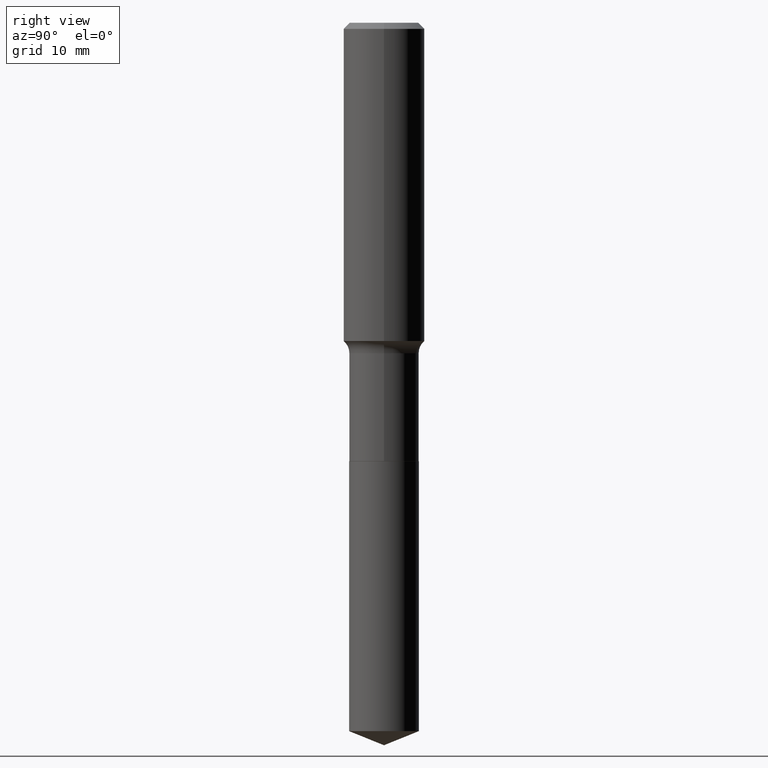
[diagram: clean part render]
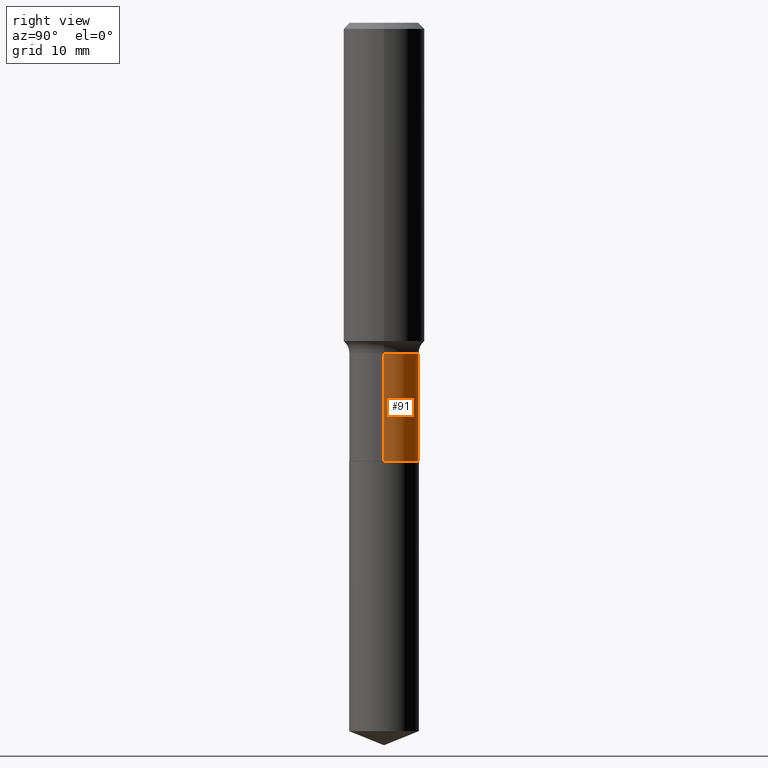
[diagram: same view with one face highlighted and labeled with its STEP entity id]
A machine part, right view. The second image highlights one B-rep face of the part: STEP entity #91.
In plain terms, the highlighted cylindrical surface (edge-blend (fillet) strip) has radius 4.3002 mm, axis along (-0, 0, 1).
Its self-contained STEP definition (entity closure, byte-faithful):
#1 = AXIS2_PLACEMENT_3D ( 'NONE', #51, #171, #215 ) ;
#5 = CARTESIAN_POINT ( 'NONE',  ( 0.1693000000000000338, -8.603010018909505642E-15, -2.125399999999999956 ) ) ;
#23 = ORIENTED_EDGE ( 'NONE', *, *, #258, .T. ) ;
#31 = DIRECTION ( 'NONE',  ( -2.445468806185136877E-29, 3.491481338843145188E-15, 1.000000000000000000 ) ) ;
#32 = CARTESIAN_POINT ( 'NONE',  ( 0.1692999999999999505, -6.778012723096194024E-15, -1.602699999999999791 ) ) ;
#33 = EDGE_CURVE ( 'NONE', #431, #387, #363, .T. ) ;
#51 = CARTESIAN_POINT ( 'NONE',  ( 3.919352855672918001E-29, -5.595797141763909209E-15, -1.602699999999999791 ) ) ;
#91 = ADVANCED_FACE ( 'NONE', ( #479 ), #481, .T. ) ;
#95 = DIRECTION ( 'NONE',  ( -2.445468806185136597E-29, 3.491481338843145583E-15, 1.000000000000000000 ) ) ;
#99 = DIRECTION ( 'NONE',  ( -2.445468806185136597E-29, 3.491481338843145583E-15, 1.000000000000000000 ) ) ;
#103 = CARTESIAN_POINT ( 'NONE',  ( -0.1692999999999999783, 1.202948851641849460E-15, -8.327757107801554310E-30 ) ) ;
#111 = VECTOR ( 'NONE', #31, 39.37007874015748143 ) ;
#138 = EDGE_CURVE ( 'NONE', #251, #387, #149, .T. ) ;
#139 = CARTESIAN_POINT ( 'NONE',  ( 0.000000000000000000, 0.000000000000000000, 0.000000000000000000 ) ) ;
#142 = CIRCLE ( 'NONE', #303, 0.1693000000000000338 ) ;
#149 = CIRCLE ( 'NONE', #1, 0.1692999999999999505 ) ;
#152 = EDGE_LOOP ( 'NONE', ( #23, #184, #415, #239 ) ) ;
#155 = AXIS2_PLACEMENT_3D ( 'NONE', #139, #95, #395 ) ;
#165 = VERTEX_POINT ( 'NONE', #5 ) ;
#171 = DIRECTION ( 'NONE',  ( -2.445468806185136597E-29, 3.491481338843145583E-15, 1.000000000000000000 ) ) ;
#184 = ORIENTED_EDGE ( 'NONE', *, *, #33, .T. ) ;
#189 = CARTESIAN_POINT ( 'NONE',  ( 5.197599400665889285E-29, -7.420794437577220826E-15, -2.125399999999999956 ) ) ;
#192 = EDGE_CURVE ( 'NONE', #165, #251, #296, .T. ) ;
#215 = DIRECTION ( 'NONE',  ( 1.000000000000000000, -6.982962677686266711E-15, 0.000000000000000000 ) ) ;
#228 = CARTESIAN_POINT ( 'NONE',  ( 0.1692999999999999783, -1.182215581332284815E-15, 8.255367281422518423E-30 ) ) ;
#239 = ORIENTED_EDGE ( 'NONE', *, *, #192, .F. ) ;
#251 = VERTEX_POINT ( 'NONE', #32 ) ;
#258 = EDGE_CURVE ( 'NONE', #165, #431, #142, .T. ) ;
#287 = CARTESIAN_POINT ( 'NONE',  ( -0.1693000000000000338, -5.305346938028715360E-15, -2.125399999999999956 ) ) ;
#296 = LINE ( 'NONE', #228, #111 ) ;
#303 = AXIS2_PLACEMENT_3D ( 'NONE', #189, #99, #338 ) ;
#330 = DIRECTION ( 'NONE',  ( -2.445468806185136877E-29, 3.491481338843145188E-15, 1.000000000000000000 ) ) ;
#338 = DIRECTION ( 'NONE',  ( 1.000000000000000000, -6.982962677686263555E-15, 0.000000000000000000 ) ) ;
#363 = LINE ( 'NONE', #103, #450 ) ;
#387 = VERTEX_POINT ( 'NONE', #466 ) ;
#395 = DIRECTION ( 'NONE',  ( 1.000000000000000000, -6.982962677686266711E-15, 4.876176775795935793E-29 ) ) ;
#415 = ORIENTED_EDGE ( 'NONE', *, *, #138, .F. ) ;
#431 = VERTEX_POINT ( 'NONE', #287 ) ;
#450 = VECTOR ( 'NONE', #330, 39.37007874015748143 ) ;
#466 = CARTESIAN_POINT ( 'NONE',  ( -0.1692999999999999505, -5.305346938028715360E-15, -1.602699999999999791 ) ) ;
#479 = FACE_OUTER_BOUND ( 'NONE', #152, .T. ) ;
#481 = CYLINDRICAL_SURFACE ( 'NONE', #155, 0.1692999999999999783 ) ;